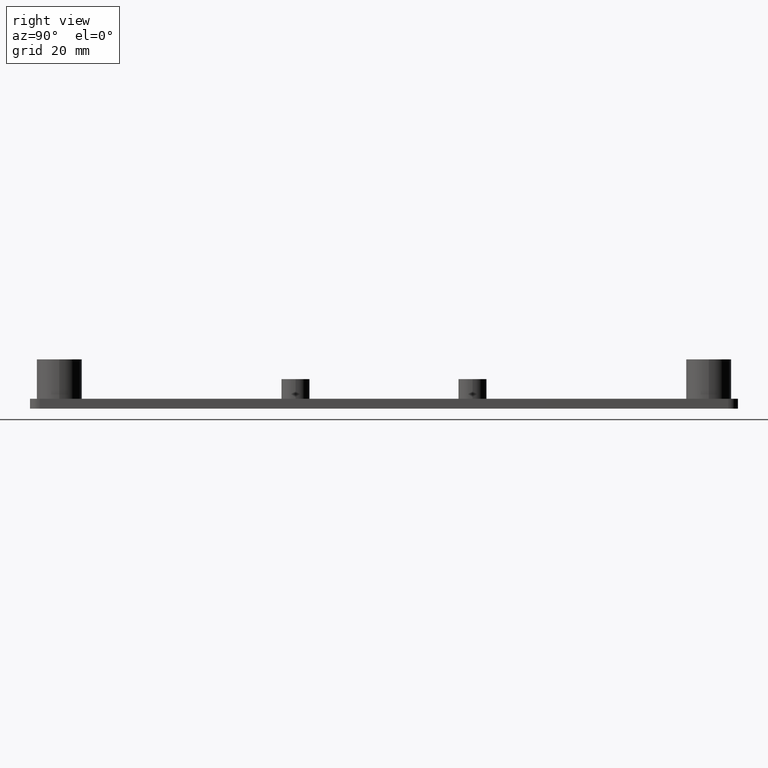
[diagram: clean part render]
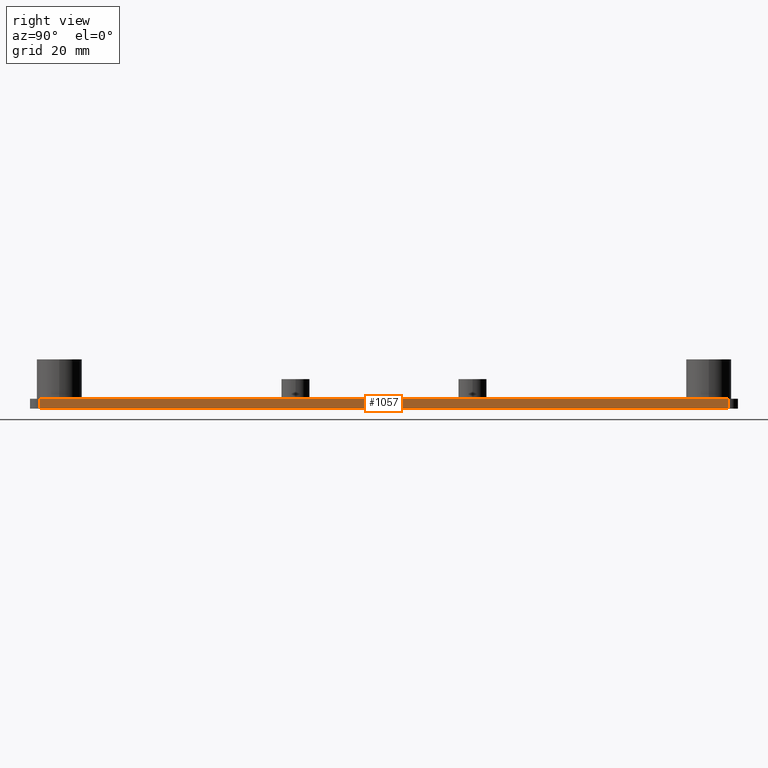
[diagram: same view with one face highlighted and labeled with its STEP entity id]
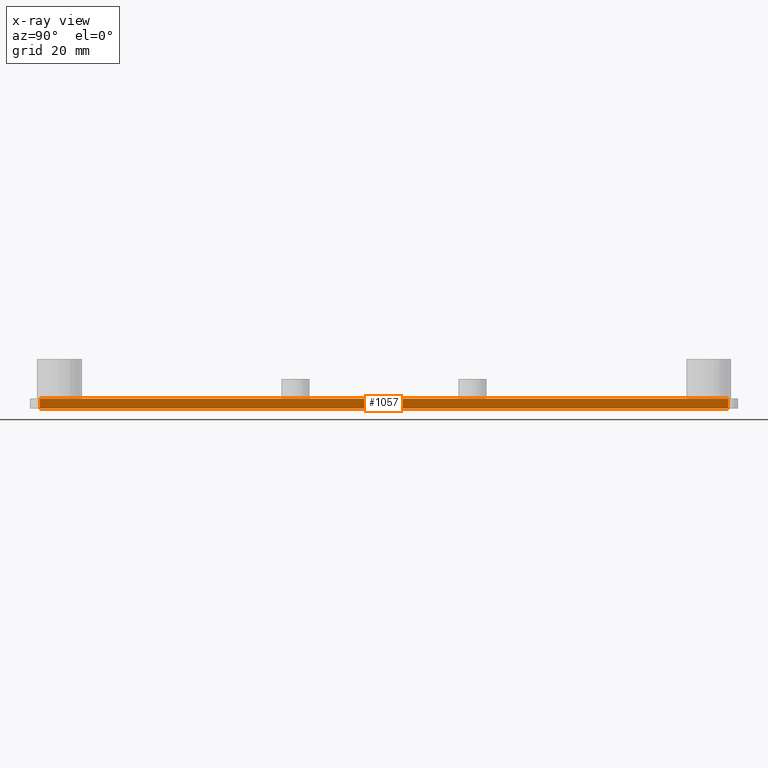
[diagram: x-ray of the same camera — body ghosted, the highlighted face saturated]
A machine part, right view. The second image highlights one B-rep face of the part: STEP entity #1057.
The next image is the same camera in x-ray: the body ghosted, the highlighted face saturated — about 0% of this face is hidden behind the body in this view.
In plain terms, the highlighted planar face has unit normal (-1, 0, 0).
Its self-contained STEP definition (entity closure, byte-faithful):
#765=CARTESIAN_POINT('',(22.499979999913648,109.999999999549800,-2.500000000000000));
#766=VERTEX_POINT('',#765);
#774=CARTESIAN_POINT('',(22.499979999913648,-65.000000999730219,-2.500000000000000));
#775=VERTEX_POINT('',#774);
#776=CARTESIAN_POINT('',(22.499979999913648,-65.000000999730219,-2.500000000000000));
#777=DIRECTION('',(0.0,1.0,0.0));
#778=VECTOR('',#777,175.000000999280020);
#779=LINE('',#776,#778);
#780=EDGE_CURVE('',#775,#766,#779,.T.);
#905=CARTESIAN_POINT('',(22.499979999913648,-65.000000999730219,0.0));
#906=VERTEX_POINT('',#905);
#914=CARTESIAN_POINT('',(22.499979999913648,109.999999999549800,0.0));
#915=VERTEX_POINT('',#914);
#916=CARTESIAN_POINT('',(22.499979999913648,-65.000000999730219,0.0));
#917=DIRECTION('',(0.0,1.0,0.0));
#918=VECTOR('',#917,175.000000999280020);
#919=LINE('',#916,#918);
#920=EDGE_CURVE('',#906,#915,#919,.T.);
#969=CARTESIAN_POINT('',(22.499979999913648,-65.000000999730219,0.0));
#970=DIRECTION('',(0.0,0.0,-1.0));
#971=VECTOR('',#970,2.500000000000000);
#972=LINE('',#969,#971);
#973=EDGE_CURVE('',#906,#775,#972,.T.);
#1006=CARTESIAN_POINT('',(22.499979999913648,109.999999999549800,0.0));
#1007=DIRECTION('',(0.0,0.0,-1.0));
#1008=VECTOR('',#1007,2.500000000000000);
#1009=LINE('',#1006,#1008);
#1010=EDGE_CURVE('',#915,#766,#1009,.T.);
#1046=CARTESIAN_POINT('',(22.499979999913648,-67.500000999730219,0.0));
#1047=DIRECTION('',(-1.0,0.0,0.0));
#1048=DIRECTION('',(0.0,1.0,0.0));
#1049=AXIS2_PLACEMENT_3D('',#1046,#1047,#1048);
#1050=PLANE('',#1049);
#1051=ORIENTED_EDGE('',*,*,#920,.F.);
#1052=ORIENTED_EDGE('',*,*,#973,.T.);
#1053=ORIENTED_EDGE('',*,*,#780,.T.);
#1054=ORIENTED_EDGE('',*,*,#1010,.F.);
#1055=EDGE_LOOP('',(#1051,#1052,#1053,#1054));
#1056=FACE_OUTER_BOUND('',#1055,.T.);
#1057=ADVANCED_FACE('',(#1056),#1050,.F.);